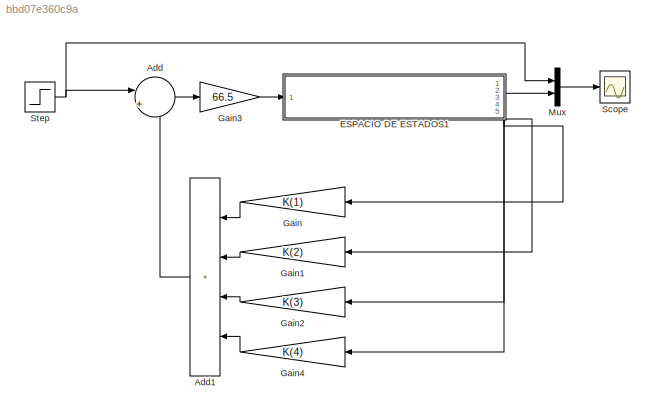
MODEL slx_bbd07e360c9a
KIND model
CONFIG AbsTol = auto
CONFIG EnableMultiTasking = off
CONFIG FixedStep = 0.001
CONFIG MaxStep = auto
CONFIG MinStep = auto
CONFIG RelTol = 1e-3
CONFIG SampleTimeConstraint = Unconstrained
CONFIG SolverName = ode4
CONFIG StartTime = 0.0
CONFIG StopTime = 15
WORKSPACE source: mxarray member
WORKSPACE ci = 5
BLOCK [Sum] Add
  Inputs = |+-
  Ports = [2, 1]
BLOCK [Sum] Add1
  IconShape = rectangular
  Inputs = ++++
  Ports = [4, 1]
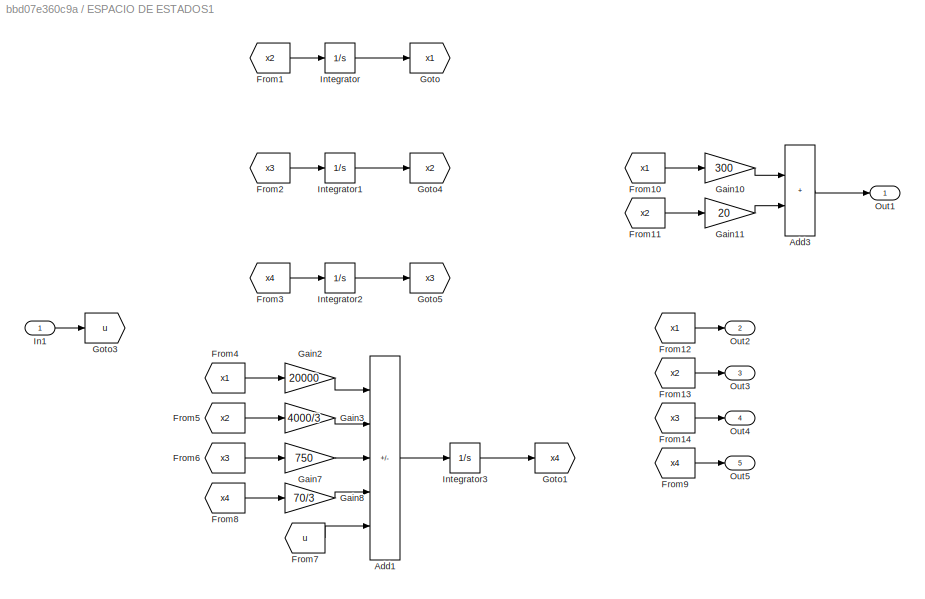
BLOCK [SubSystem] ESPACIO DE ESTADOS1
  PortSchema = {"entries":[{"content":{"sides":[{"content":{"connectorIds":["In1"]},"type":"ConnectorPlacement.EquallySpacedRectSide","uuid":"e4c7e91e-e27a-4516-8912-0ffb8324b1cf"},{"content":{"connectorIds":["Out1"],"side":"RIGHT"},"type":"ConnectorPlacement.EquallySpacedRectSide","uuid":"c8b6f25f-762c-42f8-84b8-6d4e17a9e409"},{"content":{"connectorIds":[],"side":"TOP"},"type":"ConnectorPlacement.EquallySpacedR...<+411ch>
  Ports = [1, 5]
  RequestExecContextInheritance = off
BLOCK [Sum] ESPACIO DE ESTADOS1/Add1
  IconShape = rectangular
  Inputs = ----+
  Ports = [5, 1]
BLOCK [Sum] ESPACIO DE ESTADOS1/Add3
  IconShape = rectangular
  Ports = [2, 1]
BLOCK [From] ESPACIO DE ESTADOS1/From1
  GotoTag = x2
BLOCK [From] ESPACIO DE ESTADOS1/From10
  GotoTag = x1
BLOCK [From] ESPACIO DE ESTADOS1/From11
  GotoTag = x2
BLOCK [From] ESPACIO DE ESTADOS1/From12
  GotoTag = x1
BLOCK [From] ESPACIO DE ESTADOS1/From13
  GotoTag = x2
BLOCK [From] ESPACIO DE ESTADOS1/From14
  GotoTag = x3
BLOCK [From] ESPACIO DE ESTADOS1/From2
  GotoTag = x3
BLOCK [From] ESPACIO DE ESTADOS1/From3
  GotoTag = x4
BLOCK [From] ESPACIO DE ESTADOS1/From4
  GotoTag = x1
BLOCK [From] ESPACIO DE ESTADOS1/From5
  GotoTag = x2
BLOCK [From] ESPACIO DE ESTADOS1/From6
  GotoTag = x3
BLOCK [From] ESPACIO DE ESTADOS1/From7
  GotoTag = u
BLOCK [From] ESPACIO DE ESTADOS1/From8
  GotoTag = x4
BLOCK [From] ESPACIO DE ESTADOS1/From9
  GotoTag = x4
BLOCK [Gain] ESPACIO DE ESTADOS1/Gain10
  Gain = 300
BLOCK [Gain] ESPACIO DE ESTADOS1/Gain11
  Gain = 20
BLOCK [Gain] ESPACIO DE ESTADOS1/Gain2
  Gain = 20000
BLOCK [Gain] ESPACIO DE ESTADOS1/Gain3
  Gain = 4000/3
BLOCK [Gain] ESPACIO DE ESTADOS1/Gain7
  Gain = 750
BLOCK [Gain] ESPACIO DE ESTADOS1/Gain8
  Gain = 70/3
BLOCK [Goto] ESPACIO DE ESTADOS1/Goto
  GotoTag = x1
BLOCK [Goto] ESPACIO DE ESTADOS1/Goto1
  GotoTag = x4
BLOCK [Goto] ESPACIO DE ESTADOS1/Goto3
  GotoTag = u
BLOCK [Goto] ESPACIO DE ESTADOS1/Goto4
  GotoTag = x2
BLOCK [Goto] ESPACIO DE ESTADOS1/Goto5
  GotoTag = x3
BLOCK [Inport] ESPACIO DE ESTADOS1/In1
BLOCK [Integrator] ESPACIO DE ESTADOS1/Integrator
  Ports = [1, 1]
BLOCK [Integrator] ESPACIO DE ESTADOS1/Integrator1
  Ports = [1, 1]
BLOCK [Integrator] ESPACIO DE ESTADOS1/Integrator2
  Ports = [1, 1]
BLOCK [Integrator] ESPACIO DE ESTADOS1/Integrator3
  Ports = [1, 1]
BLOCK [Outport] ESPACIO DE ESTADOS1/Out1
BLOCK [Outport] ESPACIO DE ESTADOS1/Out2
  Port = 2
BLOCK [Outport] ESPACIO DE ESTADOS1/Out3
  Port = 3
BLOCK [Outport] ESPACIO DE ESTADOS1/Out4
  Port = 4
BLOCK [Outport] ESPACIO DE ESTADOS1/Out5
  Port = 5
BLOCK [Gain] Gain
  Gain = K(1)
BLOCK [Gain] Gain1
  Gain = K(2)
BLOCK [Gain] Gain2
  Gain = K(3)
BLOCK [Gain] Gain3
  Gain = 66.5
BLOCK [Gain] Gain4
  Gain = K(4)
BLOCK [Mux] Mux
  DisplayOption = bar
  Inputs = 2
  Ports = [2, 1]
BLOCK [Scope] Scope
  Floating = off
  NumInputPorts = 1
  Ports = [1]
  ScopeSpecificationString = Simulink.scopes.TimeScopeBlockCfg('CurrentConfiguration', extmgr.ConfigurationSet(extmgr.Configuration('Core','General UI',true),extmgr.Configuration('Core','Source UI',true),extmgr.Configuration('Sources','WiredSimulink',true),extmgr.Configuration('Visuals','Time Domain',true,'SerializedDisplays',{struct('MinYLimReal','-0.30289','MaxYLimReal','2.64751','YLabelReal','','MinYLimMag','0.00000','MaxY...<+1477ch>
BLOCK [Step] Step
  SampleTime = 0
LINE Add1:1 -> Add:2
LINE Add:1 -> Gain3:1
LINE ESPACIO DE ESTADOS1/Add1:1 -> ESPACIO DE ESTADOS1/Integrator3:1
LINE ESPACIO DE ESTADOS1/Add3:1 -> ESPACIO DE ESTADOS1/Out1:1
LINE ESPACIO DE ESTADOS1/From10:1 -> ESPACIO DE ESTADOS1/Gain10:1
LINE ESPACIO DE ESTADOS1/From11:1 -> ESPACIO DE ESTADOS1/Gain11:1
LINE ESPACIO DE ESTADOS1/From12:1 -> ESPACIO DE ESTADOS1/Out2:1
LINE ESPACIO DE ESTADOS1/From13:1 -> ESPACIO DE ESTADOS1/Out3:1
LINE ESPACIO DE ESTADOS1/From14:1 -> ESPACIO DE ESTADOS1/Out4:1
LINE ESPACIO DE ESTADOS1/From1:1 -> ESPACIO DE ESTADOS1/Integrator:1
LINE ESPACIO DE ESTADOS1/From2:1 -> ESPACIO DE ESTADOS1/Integrator1:1
LINE ESPACIO DE ESTADOS1/From3:1 -> ESPACIO DE ESTADOS1/Integrator2:1
LINE ESPACIO DE ESTADOS1/From4:1 -> ESPACIO DE ESTADOS1/Gain2:1
LINE ESPACIO DE ESTADOS1/From5:1 -> ESPACIO DE ESTADOS1/Gain3:1
LINE ESPACIO DE ESTADOS1/From6:1 -> ESPACIO DE ESTADOS1/Gain7:1
LINE ESPACIO DE ESTADOS1/From7:1 -> ESPACIO DE ESTADOS1/Add1:5
LINE ESPACIO DE ESTADOS1/From8:1 -> ESPACIO DE ESTADOS1/Gain8:1
LINE ESPACIO DE ESTADOS1/From9:1 -> ESPACIO DE ESTADOS1/Out5:1
LINE ESPACIO DE ESTADOS1/Gain10:1 -> ESPACIO DE ESTADOS1/Add3:1
LINE ESPACIO DE ESTADOS1/Gain11:1 -> ESPACIO DE ESTADOS1/Add3:2
LINE ESPACIO DE ESTADOS1/Gain2:1 -> ESPACIO DE ESTADOS1/Add1:1
LINE ESPACIO DE ESTADOS1/Gain3:1 -> ESPACIO DE ESTADOS1/Add1:2
LINE ESPACIO DE ESTADOS1/Gain7:1 -> ESPACIO DE ESTADOS1/Add1:3
LINE ESPACIO DE ESTADOS1/Gain8:1 -> ESPACIO DE ESTADOS1/Add1:4
LINE ESPACIO DE ESTADOS1/In1:1 -> ESPACIO DE ESTADOS1/Goto3:1
LINE ESPACIO DE ESTADOS1/Integrator1:1 -> ESPACIO DE ESTADOS1/Goto4:1
LINE ESPACIO DE ESTADOS1/Integrator2:1 -> ESPACIO DE ESTADOS1/Goto5:1
LINE ESPACIO DE ESTADOS1/Integrator3:1 -> ESPACIO DE ESTADOS1/Goto1:1
LINE ESPACIO DE ESTADOS1/Integrator:1 -> ESPACIO DE ESTADOS1/Goto:1
LINE ESPACIO DE ESTADOS1:1 -> Mux:2
LINE ESPACIO DE ESTADOS1:2 -> Gain:1
LINE ESPACIO DE ESTADOS1:3 -> Gain1:1
LINE ESPACIO DE ESTADOS1:4 -> Gain2:1
LINE ESPACIO DE ESTADOS1:5 -> Gain4:1
LINE Gain1:1 -> Add1:2
LINE Gain2:1 -> Add1:3
LINE Gain3:1 -> ESPACIO DE ESTADOS1:1
LINE Gain4:1 -> Add1:4
LINE Gain:1 -> Add1:1
LINE Mux:1 -> Scope:1
NET Step:1 -> Add:1, Mux:1
note: NET lines group one-source signal fan-out (src -> all destinations, sorted); 1:1 wires keep LINE
